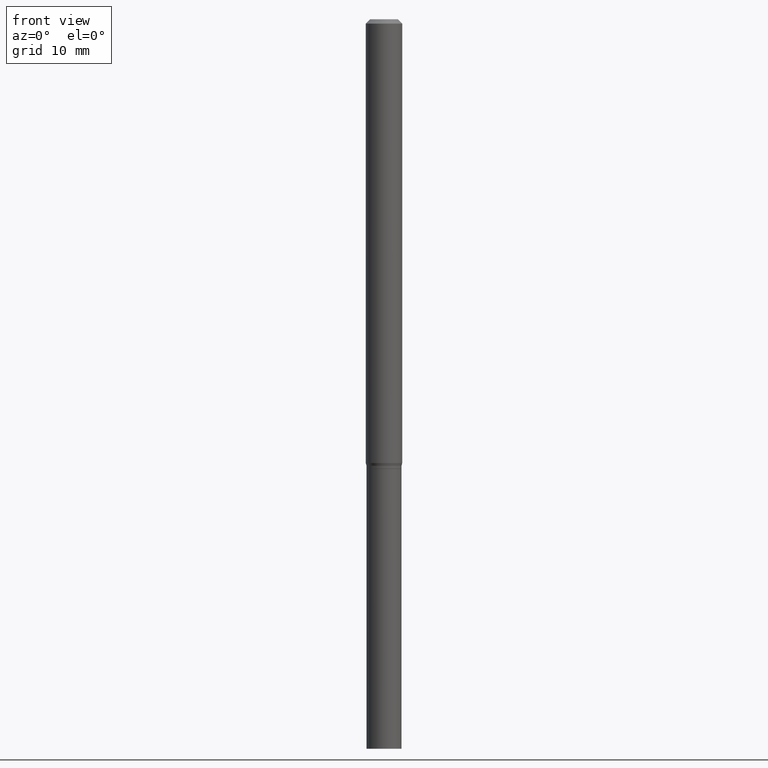
[diagram: clean part render]
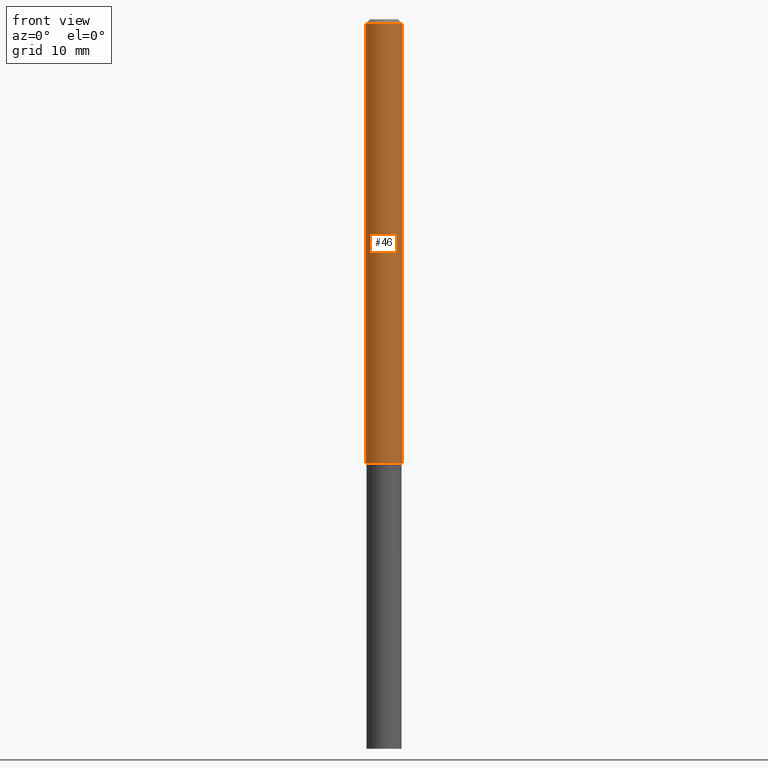
[diagram: same view with one face highlighted and labeled with its STEP entity id]
A machine part, front view. The second image highlights one B-rep face of the part: STEP entity #46.
In plain terms, the highlighted cylindrical surface (edge-blend (fillet) strip) has radius 1.5875 mm, axis along (-0, 0, 1).
Its self-contained STEP definition (entity closure, byte-faithful):
#1 = VERTEX_POINT ( 'NONE', #247 ) ;
#3 = EDGE_LOOP ( 'NONE', ( #169, #33, #93, #40 ) ) ;
#14 = DIRECTION ( 'NONE',  ( 1.000000000000000000, -6.982962677686266711E-15, 0.000000000000000000 ) ) ;
#33 = ORIENTED_EDGE ( 'NONE', *, *, #292, .T. ) ;
#39 = VERTEX_POINT ( 'NONE', #435 ) ;
#40 = ORIENTED_EDGE ( 'NONE', *, *, #284, .F. ) ;
#44 = FACE_OUTER_BOUND ( 'NONE', #3, .T. ) ;
#46 = ADVANCED_FACE ( 'NONE', ( #44 ), #100, .T. ) ;
#61 = CARTESIAN_POINT ( 'NONE',  ( 0.06250000000000000000, -4.364351673553916694E-16, 3.047610484872459871E-30 ) ) ;
#65 = VECTOR ( 'NONE', #118, 39.37007874015748143 ) ;
#81 = AXIS2_PLACEMENT_3D ( 'NONE', #328, #251, #138 ) ;
#87 = LINE ( 'NONE', #147, #65 ) ;
#93 = ORIENTED_EDGE ( 'NONE', *, *, #116, .T. ) ;
#98 = AXIS2_PLACEMENT_3D ( 'NONE', #109, #183, #14 ) ;
#100 = CYLINDRICAL_SURFACE ( 'NONE', #81, 0.06250000000000000000 ) ;
#102 = EDGE_CURVE ( 'NONE', #238, #39, #87, .T. ) ;
#109 = CARTESIAN_POINT ( 'NONE',  ( 3.668203209277705088E-31, -5.237222008264718399E-17, -0.01499999999999999944 ) ) ;
#116 = EDGE_CURVE ( 'NONE', #1, #237, #192, .T. ) ;
#118 = DIRECTION ( 'NONE',  ( -2.445468806185136877E-29, 3.491481338843145188E-15, 1.000000000000000000 ) ) ;
#138 = DIRECTION ( 'NONE',  ( 1.000000000000000000, -6.982962677686266711E-15, 4.876176775795935793E-29 ) ) ;
#145 = CARTESIAN_POINT ( 'NONE',  ( 0.06250000000000000000, -4.888073874380388472E-16, -0.01499999999999999944 ) ) ;
#147 = CARTESIAN_POINT ( 'NONE',  ( -0.06250000000000000000, 4.440892098500626162E-16, -3.074334431409316114E-30 ) ) ;
#169 = ORIENTED_EDGE ( 'NONE', *, *, #102, .F. ) ;
#183 = DIRECTION ( 'NONE',  ( -2.445468806185136597E-29, 3.491481338843145583E-15, 1.000000000000000000 ) ) ;
#192 = LINE ( 'NONE', #61, #347 ) ;
#229 = CARTESIAN_POINT ( 'NONE',  ( -0.06250000000000000000, -4.865301274204346373E-15, -1.520669872981077697 ) ) ;
#235 = CARTESIAN_POINT ( 'NONE',  ( 3.718750738880739679E-29, -5.309390484054409778E-15, -1.520669872981077697 ) ) ;
#237 = VERTEX_POINT ( 'NONE', #145 ) ;
#238 = VERTEX_POINT ( 'NONE', #229 ) ;
#247 = CARTESIAN_POINT ( 'NONE',  ( 0.06250000000000000000, -5.745825651409801447E-15, -1.520669872981077697 ) ) ;
#251 = DIRECTION ( 'NONE',  ( -2.445468806185136597E-29, 3.491481338843145583E-15, 1.000000000000000000 ) ) ;
#270 = DIRECTION ( 'NONE',  ( -2.445468806185136597E-29, 3.491481338843145583E-15, 1.000000000000000000 ) ) ;
#284 = EDGE_CURVE ( 'NONE', #39, #237, #286, .T. ) ;
#286 = CIRCLE ( 'NONE', #98, 0.06250000000000000000 ) ;
#292 = EDGE_CURVE ( 'NONE', #238, #1, #409, .T. ) ;
#310 = DIRECTION ( 'NONE',  ( 1.000000000000000000, -6.982962677686262766E-15, 0.000000000000000000 ) ) ;
#318 = AXIS2_PLACEMENT_3D ( 'NONE', #235, #270, #310 ) ;
#328 = CARTESIAN_POINT ( 'NONE',  ( 0.000000000000000000, 0.000000000000000000, 0.000000000000000000 ) ) ;
#342 = DIRECTION ( 'NONE',  ( -2.445468806185136877E-29, 3.491481338843145188E-15, 1.000000000000000000 ) ) ;
#347 = VECTOR ( 'NONE', #342, 39.37007874015748143 ) ;
#409 = CIRCLE ( 'NONE', #318, 0.06250000000000000000 ) ;
#435 = CARTESIAN_POINT ( 'NONE',  ( -0.06250000000000000000, -2.236792142218466010E-15, -0.01499999999999999944 ) ) ;